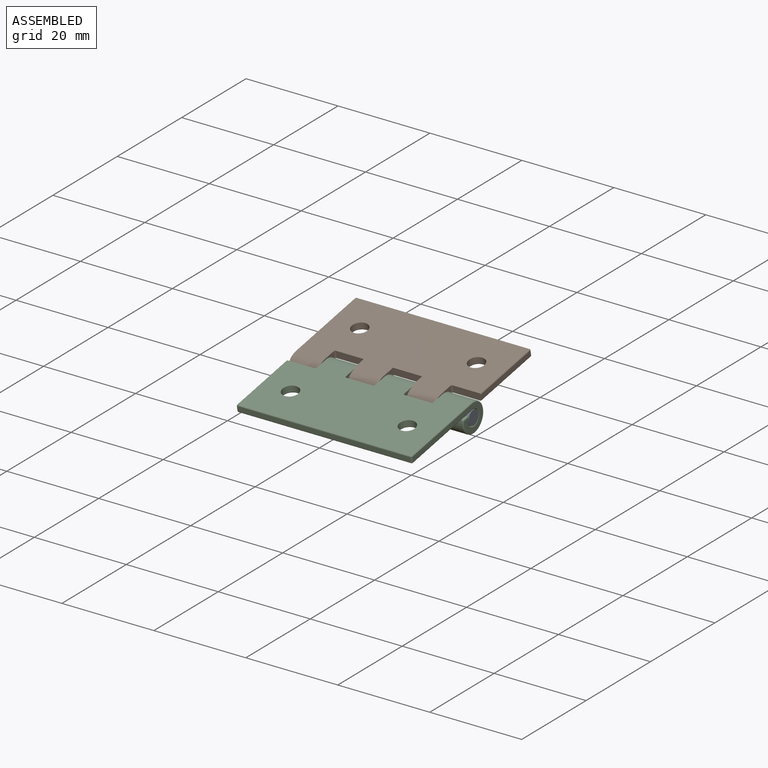
[diagram: assembled view]
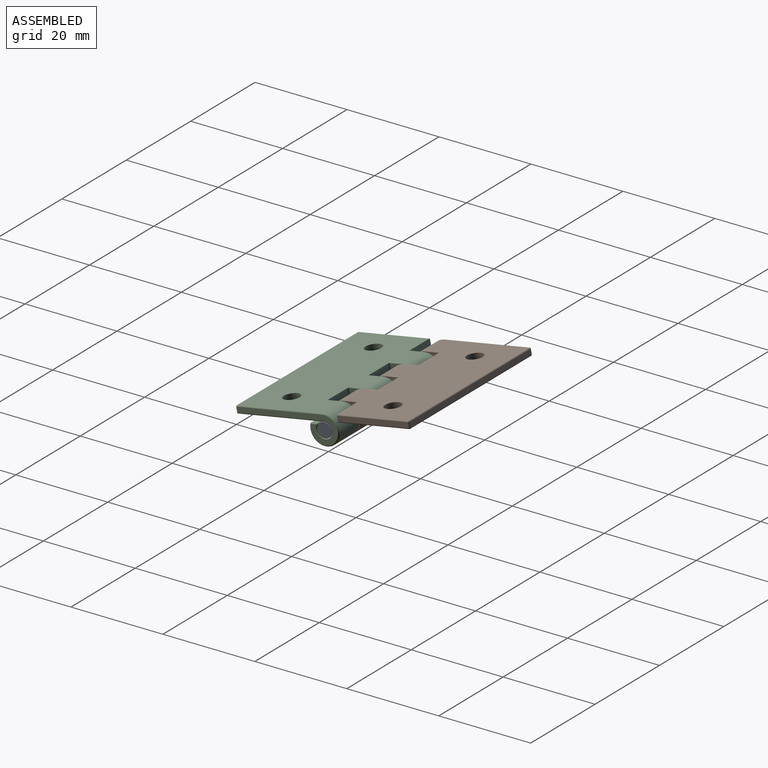
[diagram: assembled view, second angle]
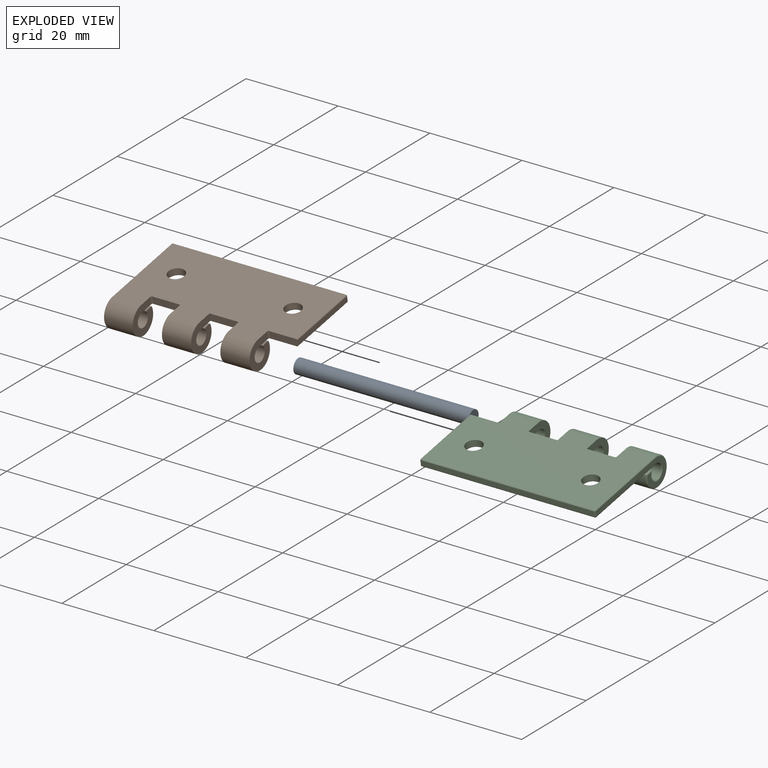
[diagram: exploded view]
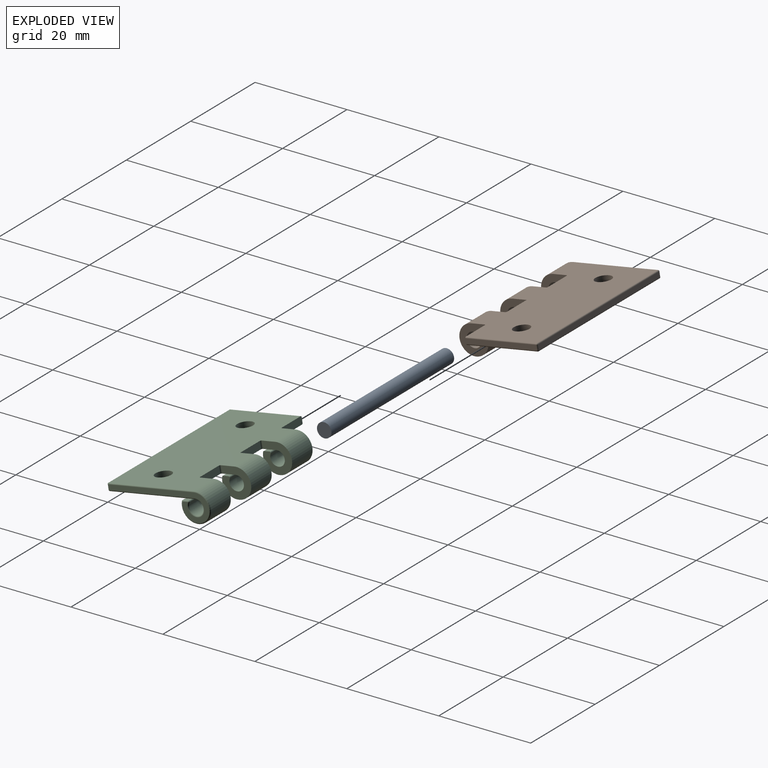
[diagram: exploded view, second angle]
ASSEMBLY  parts=3 mates=3
PART A: 3 faces, bbox 38.1x3.1x3.1 mm
  f0: cylinder r=1.57mm len=38.1mm, axis (-1,0,0), area 377mm2, adj f1,f2
  f1: plane 3.15x3.15mm, normal (1,0,0), area 7.8mm2, adj f0
  f2: plane 3.15x3.15mm, normal (-1,0,0), area 7.8mm2, adj f0
PART B: 53 faces, bbox 38.1x22.5x6.9 mm
  f0: plane 6.1x1.59mm, normal (0,-1,0), area 9.7mm2, adj f6,f7,f20,f49
  f1: plane 5.84x1.59mm, normal (0,-1,0), area 9.3mm2, adj f6,f7,f51,f52
  f2: plane 21.72x5.84mm, normal (1,0,0), area 33.4mm2, adj f34,f37,f38,f39,f40,f41,f42,f43
  f3: plane 37.59x1.08mm, normal (0,1,0), area 40.6mm2, adj f32,f33,f34,f48
  f4: plane 15.62x1.08mm, normal (-1,0,0), area 16.9mm2, adj f5,f44,f45,f48
  f5: plane 6.1x1.59mm, normal (0,-1,0), area 9.6mm2, adj f4,f6,f7,f44,f45,f50
  f6: plane 37.59x18.8mm, normal (0,0,1), area 621.7mm2, adj f0,f1,f5,f12,f13,f18,f19,f20
  f7: plane 37.59x18.8mm, normal (0,0,-1), area 627.7mm2, adj f0,f1,f5,f11,f13,f17,f19,f20
  f8: cylinder r=0.26mm len=6.1mm, axis (-1,0,0), area 3.3mm2, adj f9,f12,f13,f41
  f9: plane 6.1x1.16mm, normal (0,0,-1), area 7.1mm2, adj f8,f10,f13,f43
  f10: cylinder r=0.26mm len=6.1mm, axis (-1,0,0), area 2mm2, adj f9,f11,f13,f42
  f11: cylinder r=3.17mm len=6.35mm, axis (-1,0,0), area 97.5mm2, adj f7,f10,f13,f40
  f12: cylinder r=1.59mm len=6.1mm, axis (-1,0,0), area 50.7mm2, adj f6,f8,f13,f39
  f13: plane 6.35x6.35mm, normal (-1,0,0), area 24.4mm2, adj f6,f7,f8,f9,f10,f11,f12,f52
  f14: cylinder r=0.26mm len=6.35mm, axis (-1,0,0), area 3.5mm2, adj f15,f18,f19,f20
  f15: plane 6.35x1.16mm, normal (0,0,-1), area 7.4mm2, adj f14,f16,f19,f20
  f16: cylinder r=0.26mm len=6.35mm, axis (-1,0,0), area 2.1mm2, adj f15,f17,f19,f20
  f17: cylinder r=3.17mm len=6.35mm, axis (-1,0,0), area 101.5mm2, adj f7,f16,f19,f20
  f18: cylinder r=1.59mm len=6.35mm, axis (-1,0,0), area 52.8mm2, adj f6,f14,f19,f20
  f19: plane 6.35x6.35mm, normal (1,0,0), area 24.4mm2, adj f6,f7,f14,f15,f16,f17,f18,f51
  f20: plane 6.35x6.35mm, normal (-1,0,0), area 24.8mm2, adj f0,f6,f7,f14,f15,f16,f17,f18
  f21: cylinder r=0.26mm len=6.35mm, axis (1,0,0), area 3.5mm2, adj f22,f25,f26,f27
  f22: plane 6.35x1.16mm, normal (0,0,-1), area 7.4mm2, adj f21,f23,f26,f27
  f23: cylinder r=0.26mm len=6.35mm, axis (1,0,0), area 2.1mm2, adj f22,f24,f26,f27
  f24: cylinder r=3.17mm len=6.35mm, axis (1,0,0), area 101.5mm2, adj f7,f23,f26,f27
  f25: cylinder r=1.59mm len=6.35mm, axis (1,0,0), area 52.8mm2, adj f6,f21,f26,f27
  f26: plane 6.35x6.35mm, normal (-1,0,0), area 24.4mm2, adj f6,f7,f21,f22,f23,f24,f25,f50
  f27: plane 6.35x6.35mm, normal (1,0,0), area 24.4mm2, adj f6,f7,f21,f22,f23,f24,f25,f49
  f28: cylinder r=1.75mm len=3.51mm, axis (0,0,-1), area 14.7mm2, adj f7,f30
  f29: cylinder r=1.75mm len=3.51mm, axis (0,0,-1), area 14.7mm2, adj f7,f31
  f30: torus R=2.01mm, axis (0,0,1), area 4.6mm2, adj f6,f28
  f31: torus R=2.01mm, axis (0,0,1), area 4.6mm2, adj f6,f29
  f32: cylinder r=0.25mm len=37.59mm, axis (-1,0,0), area 15mm2, adj f3,f7,f36,f47
  f33: cylinder r=0.25mm len=37.59mm, axis (1,0,0), area 15mm2, adj f3,f6,f35,f46
  f34: cylinder r=0.25mm len=1.08mm, axis (0,0,-1), area 0.4mm2, adj f2,f3,f35,f36
  f35: sphere r=0.25mm, area 0.1mm2, adj f33,f34,f37
  f36: sphere r=0.25mm, area 0.1mm2, adj f32,f34,f38
  f37: cylinder r=0.25mm len=18.8mm, axis (0,-1,0), area 7.5mm2, adj f2,f6,f35,f39
  f38: cylinder r=0.25mm len=18.8mm, axis (0,1,0), area 7.5mm2, adj f2,f7,f36,f40
  f39: torus R=1.84mm, axis (-1,0,0), area 3.5mm2, adj f2,f12,f37,f41
  f40: torus R=2.92mm, axis (-1,0,0), area 6.2mm2, adj f2,f11,f38,f42
  f41: torus R=0.01mm, axis (-1,0,0), area 0.1mm2, adj f2,f8,f39,f43
  f42: torus R=0.01mm, axis (-1,0,0), area 0.1mm2, adj f2,f10,f40,f43
  f43: cylinder r=0.25mm len=1.16mm, axis (0,1,0), area 0.5mm2, adj f2,f9,f41,f42
  f44: cylinder r=0.25mm len=15.62mm, axis (0,1,0), area 6.2mm2, adj f4,f5,f6,f46
  f45: cylinder r=0.25mm len=15.62mm, axis (0,-1,0), area 6.2mm2, adj f4,f5,f7,f47
  f46: sphere r=0.25mm, area 0.1mm2, adj f33,f44,f48
  f47: sphere r=0.25mm, area 0.1mm2, adj f32,f45,f48
  f48: cylinder r=0.25mm len=1.08mm, axis (0,0,1), area 0.4mm2, adj f3,f4,f46,f47
  f49: cylinder r=0.25mm len=1.59mm, axis (0,0,1), area 0.6mm2, adj f0,f6,f7,f27
  f50: cylinder r=0.25mm len=1.59mm, axis (0,0,-1), area 0.6mm2, adj f5,f6,f7,f26
  f51: cylinder r=0.25mm len=1.59mm, axis (0,0,1), area 0.6mm2, adj f1,f6,f7,f19
  f52: cylinder r=0.25mm len=1.59mm, axis (0,0,-1), area 0.6mm2, adj f1,f6,f7,f13
PART C: same geometry as B
PLACE A t=(-18,-0.84,-1.91)mm fixed
PLACE B rot(axis=(0,-1,-0.09),180deg) t=(0.8,9.52,3.21)mm
PLACE C rot(axis=(-1,0,0),169.7deg) t=(1.05,-12.35,-0.77)mm
MATE revolute C.f11 <-> B.f39  axis (1,0,0) through (20.1,-0.84,-1.91)mm
MATE revolute A.f0 <-> C.f11  axis (1,0,0) through (20.1,-0.84,-1.91)mm
MATE revolute B.f11 <-> A.f0  axis (1,0,0) through (-18,-0.84,-1.91)mm
